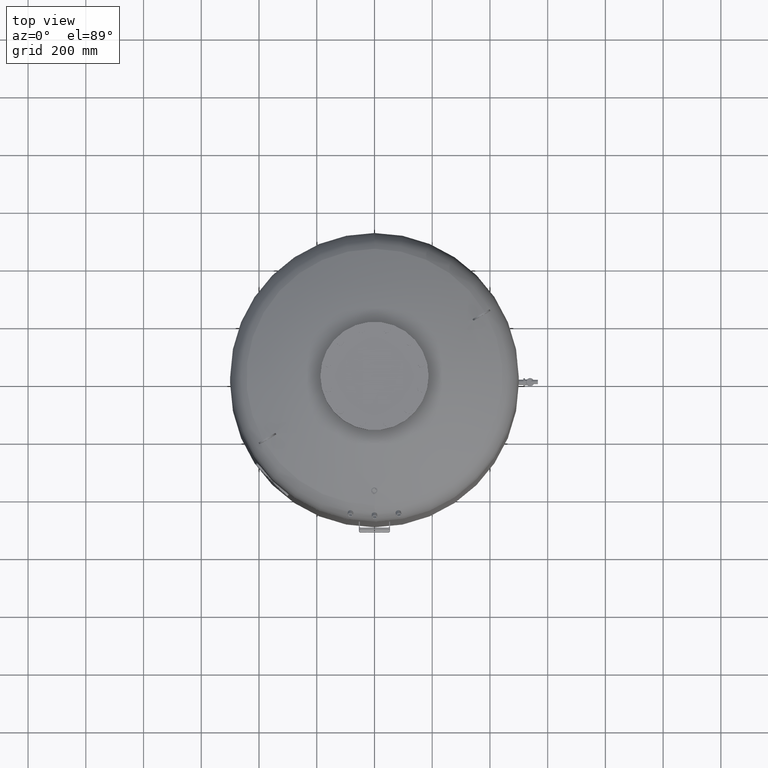
[diagram: clean part render]
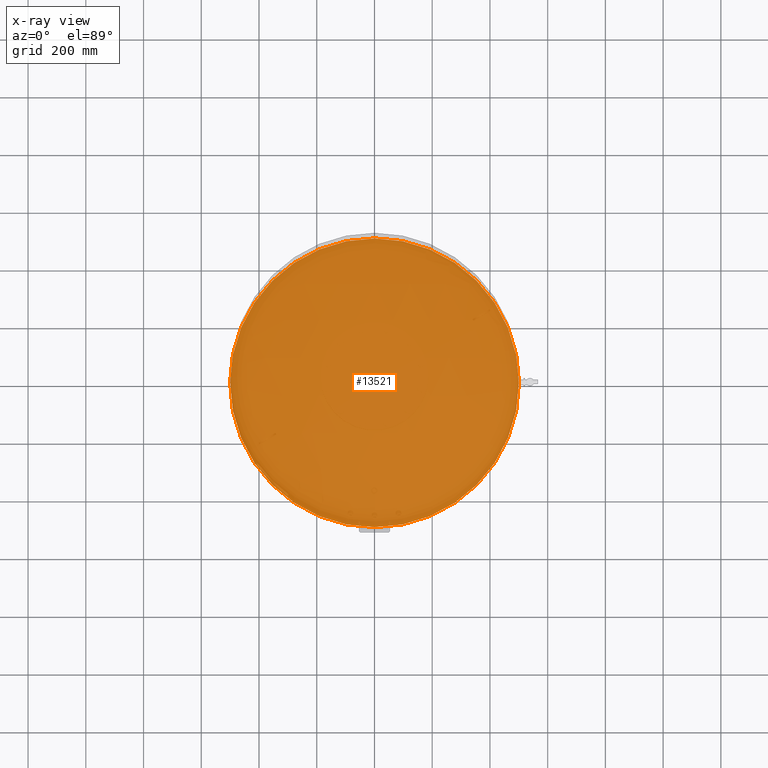
[diagram: x-ray — body ghosted, one internal face saturated and labeled with its STEP entity id]
A machine part, top view, then the same camera in x-ray: the body is ghosted and one INTERNAL B-rep face — a face not visible from any outside direction — is saturated and labeled: STEP entity #13521.
In plain terms, the highlighted planar face has unit normal (0, 0, 1).
Its self-contained STEP definition (entity closure, byte-faithful):
#13319=CARTESIAN_POINT('',(-500.0,-3.995410E-014,677.500000000000000));
#13320=VERTEX_POINT('',#13319);
#13329=CARTESIAN_POINT('',(500.0,2.127622E-014,677.500000000000110));
#13330=VERTEX_POINT('',#13329);
#13331=CARTESIAN_POINT('',(-2.917769E-014,-3.995410E-014,677.500000000000000));
#13332=DIRECTION('',(0.0,0.0,1.0));
#13333=DIRECTION('',(-1.0,0.0,0.0));
#13334=AXIS2_PLACEMENT_3D('',#13331,#13332,#13333);
#13335=CIRCLE('',#13334,500.0);
#13336=EDGE_CURVE('',#13330,#13320,#13335,.T.);
#13502=CARTESIAN_POINT('',(-2.917769E-014,-3.995410E-014,677.500000000000000));
#13503=DIRECTION('',(0.0,0.0,1.0));
#13504=DIRECTION('',(-1.0,0.0,0.0));
#13505=AXIS2_PLACEMENT_3D('',#13502,#13503,#13504);
#13506=CIRCLE('',#13505,500.0);
#13507=EDGE_CURVE('',#13320,#13330,#13506,.T.);
#13512=CARTESIAN_POINT('',(-250.0,-3.995410E-014,677.500000000000000));
#13513=DIRECTION('',(0.0,0.0,1.0));
#13514=DIRECTION('',(0.0,-1.0,0.0));
#13515=AXIS2_PLACEMENT_3D('',#13512,#13513,#13514);
#13516=PLANE('',#13515);
#13517=ORIENTED_EDGE('',*,*,#13507,.T.);
#13518=ORIENTED_EDGE('',*,*,#13336,.T.);
#13519=EDGE_LOOP('',(#13517,#13518));
#13520=FACE_OUTER_BOUND('',#13519,.T.);
#13521=ADVANCED_FACE('',(#13520),#13516,.T.);